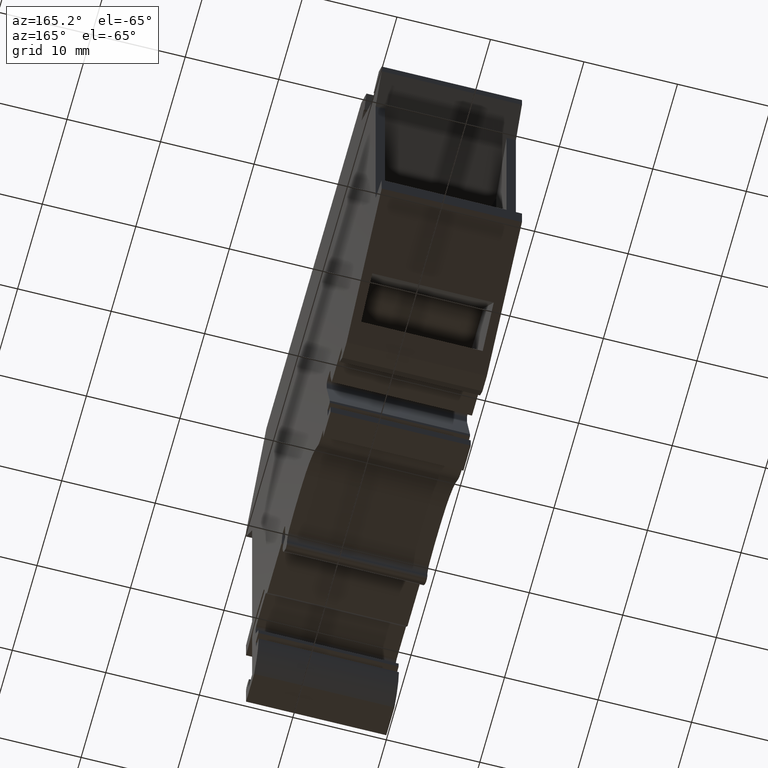
[diagram: clean part render]
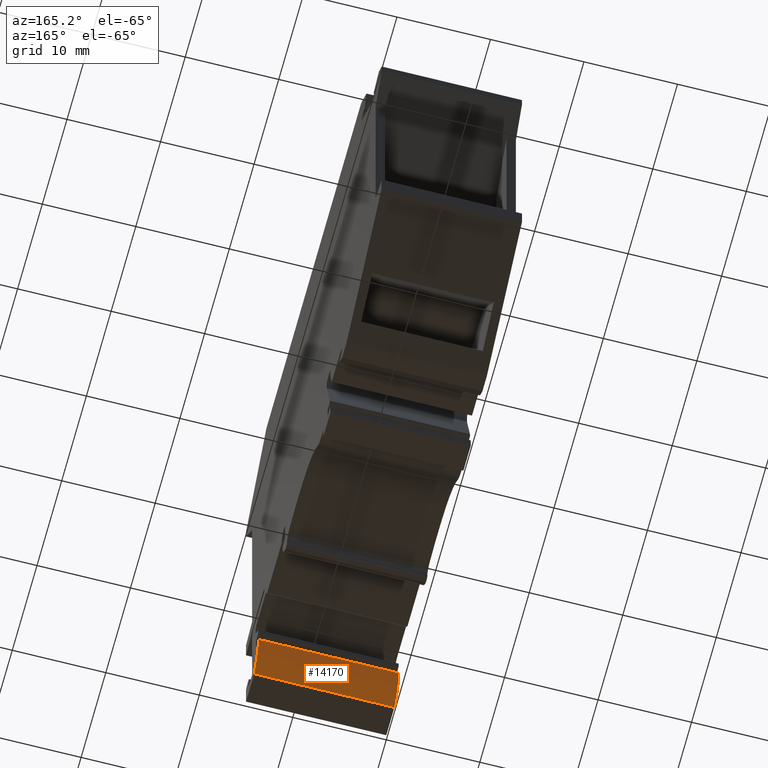
[diagram: same view with one face highlighted and labeled with its STEP entity id]
A machine part, auxiliary view. The second image highlights one B-rep face of the part: STEP entity #14170.
In plain terms, the highlighted cylindrical surface (partial cylindrical patch) has radius 7.466 mm, axis along (1, 0, 0).
Its self-contained STEP definition (entity closure, byte-faithful):
#5630=CARTESIAN_POINT('',(-94.4865658524048,261.104310306645,7.4));
#5640=VERTEX_POINT('',#5630);
#5670=CARTESIAN_POINT('',(-101.950946857005,261.26179766545,7.4));
#5680=DIRECTION('',(0.,0.,1.));
#5690=DIRECTION('',(1.,0.,0.));
#5700=AXIS2_PLACEMENT_3D('',#5670,#5680,#5690);
#5710=CIRCLE('',#5700,7.46604219449766);
#5720=CARTESIAN_POINT('',(-96.2811494524171,256.404310306645,7.4));
#5730=VERTEX_POINT('',#5720);
#5740=EDGE_CURVE('',#5730,#5640,#5710,.T.);
#13730=CARTESIAN_POINT('',(-94.4865658524048,261.104310306644,-7.6));
#13740=VERTEX_POINT('',#13730);
#13770=CARTESIAN_POINT('',(-94.4865658524048,261.104310306644,7.4));
#13780=DIRECTION('',(0.,0.,-1.));
#13790=VECTOR('',#13780,1.);
#13800=LINE('',#13770,#13790);
#13810=EDGE_CURVE('',#5640,#13740,#13800,.T.);
#13930=CARTESIAN_POINT('',(-101.950946857005,261.26179766545,7.4));
#13940=DIRECTION('',(0.,0.,1.));
#13950=DIRECTION('',(1.,0.,0.));
#13960=AXIS2_PLACEMENT_3D('',#13930,#13940,#13950);
#13970=CYLINDRICAL_SURFACE('',#13960,7.46604219449766);
#13980=ORIENTED_EDGE('',*,*,#5740,.F.);
#13990=ORIENTED_EDGE('',*,*,#13810,.F.);
#14000=CARTESIAN_POINT('',(-101.950946857005,261.26179766545,-7.6));
#14010=DIRECTION('',(0.,0.,1.));
#14020=DIRECTION('',(1.,0.,0.));
#14030=AXIS2_PLACEMENT_3D('',#14000,#14010,#14020);
#14040=CIRCLE('',#14030,7.46604219449766);
#14050=CARTESIAN_POINT('',(-96.2811494524171,256.404310306645,-7.6));
#14060=VERTEX_POINT('',#14050);
#14070=EDGE_CURVE('',#14060,#13740,#14040,.T.);
#14080=ORIENTED_EDGE('',*,*,#14070,.T.);
#14090=CARTESIAN_POINT('',(-96.2811494524171,256.404310306645,7.4));
#14100=DIRECTION('',(0.,0.,-1.));
#14110=VECTOR('',#14100,1.);
#14120=LINE('',#14090,#14110);
#14130=EDGE_CURVE('',#5730,#14060,#14120,.T.);
#14140=ORIENTED_EDGE('',*,*,#14130,.T.);
#14150=EDGE_LOOP('',(#14140,#14080,#13990,#13980));
#14160=FACE_OUTER_BOUND('',#14150,.T.);
#14170=ADVANCED_FACE('',(#14160),#13970,.T.);